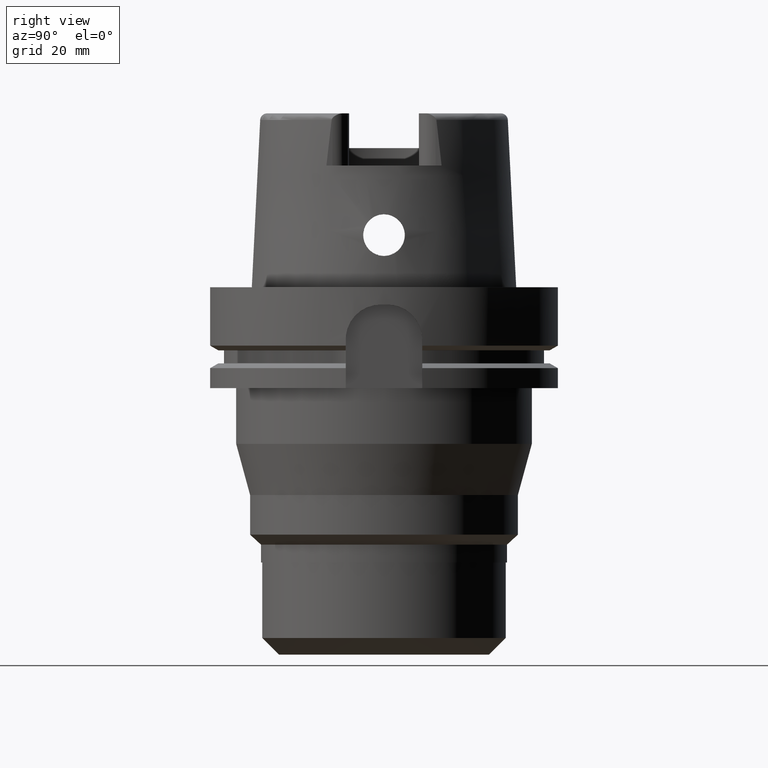
[diagram: clean part render]
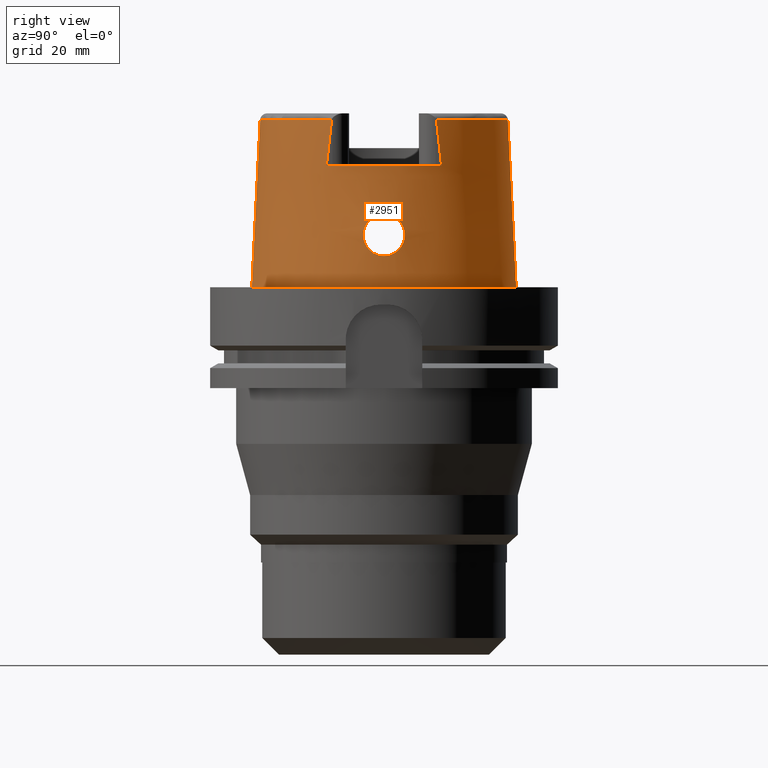
[diagram: same view with one face highlighted and labeled with its STEP entity id]
A machine part, right view. The second image highlights one B-rep face of the part: STEP entity #2951.
In plain terms, the highlighted conical surface has half-angle 2.862 deg.
Its self-contained STEP definition (entity closure, byte-faithful):
#284=CARTESIAN_POINT('',(3.224998031256E1,-1.506460497396E1,4.809929630025E1));
#289=CARTESIAN_POINT('',(0.E0,1.812477262738E-14,4.809987853799E1));
#290=DIRECTION('',(0.E0,0.E0,-1.E0));
#291=DIRECTION('',(9.060259215417E-1,-4.232221987260E-1,0.E0));
#292=AXIS2_PLACEMENT_3D('',#289,#290,#291);
#323=DIRECTION('',(0.E0,-4.993926899645E-2,-9.987522562738E-1));
#324=VECTOR('',#323,4.815996983821E1);
#325=CARTESIAN_POINT('',(0.E0,-3.559494289391E1,4.809987853799E1));
#326=LINE('',#325,#324);
#370=DIRECTION('',(0.E0,4.993926899645E-2,-9.987522562738E-1));
#371=VECTOR('',#370,4.815996983821E1);
#372=CARTESIAN_POINT('',(0.E0,3.559494289391E1,4.809987853799E1));
#373=LINE('',#372,#371);
#377=CARTESIAN_POINT('',(3.694998175923E1,-1.453351852992E-13,2.1E1));
#378=CARTESIAN_POINT('',(3.694998175923E1,-4.799122326449E-1,2.1E1));
#379=CARTESIAN_POINT('',(3.693670376469E1,-1.442540532748E0,2.088414239724E1));
#380=CARTESIAN_POINT('',(3.688227354356E1,-2.811301586E0,2.036808932160E1));
#381=CARTESIAN_POINT('',(3.680970943346E1,-4.022240410232E0,1.953043063064E1));
#382=CARTESIAN_POINT('',(3.674470283531E1,-4.978268947612E0,1.845115512417E1));
#383=CARTESIAN_POINT('',(3.670933065349E1,-5.659110974827E0,1.716299463694E1));
#384=CARTESIAN_POINT('',(3.672363970089E1,-6.010410920734E0,1.575575631164E1));
#385=CARTESIAN_POINT('',(3.679580916816E1,-6.017619566356E0,1.430817000853E1));
#386=CARTESIAN_POINT('',(3.692112760086E1,-5.683788567187E0,1.290208373589E1));
#387=CARTESIAN_POINT('',(3.708594471835E1,-5.012432075060E0,1.159706762272E1));
#388=CARTESIAN_POINT('',(3.726041301215E1,-4.057107370589E0,1.049780005074E1));
#389=CARTESIAN_POINT('',(3.742024448988E1,-2.819590723007E0,9.633109430401E0));
#390=CARTESIAN_POINT('',(3.752612894498E1,-1.431363051833E0,9.112686081133E0));
#391=CARTESIAN_POINT('',(3.755000165825E1,-4.735011799021E-1,9.E0));
#392=CARTESIAN_POINT('',(3.755000165825E1,0.E0,9.E0));
#397=CARTESIAN_POINT('',(3.755000165825E1,0.E0,9.E0));
#398=CARTESIAN_POINT('',(3.755000165825E1,4.745582118721E-1,9.E0));
#399=CARTESIAN_POINT('',(3.752592864515E1,1.428696235059E0,9.113705769023E0));
#400=CARTESIAN_POINT('',(3.742286685785E1,2.788945392627E0,9.620187855067E0));
#401=CARTESIAN_POINT('',(3.726759274023E1,4.008571483131E0,1.045760523560E1));
#402=CARTESIAN_POINT('',(3.709603930462E1,4.964135615998E0,1.152789653610E1));
#403=CARTESIAN_POINT('',(3.692857004614E1,5.659263583319E0,1.283199478425E1));
#404=CARTESIAN_POINT('',(3.679907978880E1,6.013372692720E0,1.425765163703E1));
#405=CARTESIAN_POINT('',(3.672461023135E1,6.015279040013E0,1.572065441627E1));
#406=CARTESIAN_POINT('',(3.670907477178E1,5.671372285874E0,1.712979058700E1));
#407=CARTESIAN_POINT('',(3.674329838802E1,4.999709600727E0,1.842027000928E1));
#408=CARTESIAN_POINT('',(3.680812510263E1,4.046103400386E0,1.951007120824E1));
#409=CARTESIAN_POINT('',(3.688133828058E1,2.830804808809E0,2.035890139054E1));
#410=CARTESIAN_POINT('',(3.693654872426E1,1.451647881809E0,2.088284739979E1));
#411=CARTESIAN_POINT('',(3.694998175923E1,4.828042574775E-1,2.1E1));
#412=CARTESIAN_POINT('',(3.694998175923E1,-1.453351852992E-13,2.1E1));
#447=CARTESIAN_POINT('',(0.E0,1.519173610602E-14,3.5E1));
#448=DIRECTION('',(0.E0,0.E0,-1.E0));
#449=DIRECTION('',(8.896561898443E-1,4.566309931135E-1,0.E0));
#450=AXIS2_PLACEMENT_3D('',#447,#448,#449);
#519=CARTESIAN_POINT('',(3.224999527510E1,-1.655287543507E1,3.5E1));
#520=CARTESIAN_POINT('',(3.224999527510E1,-1.639341859026E1,3.645621288231E1));
#521=CARTESIAN_POINT('',(3.224999957996E1,-1.607118640311E1,3.936829811877E1));
#522=CARTESIAN_POINT('',(3.225000855749E1,-1.557477302377E1,4.373473880414E1));
#523=CARTESIAN_POINT('',(3.224998031256E1,-1.523637801989E1,4.664538119581E1));
#524=CARTESIAN_POINT('',(3.224998031256E1,-1.506460497396E1,4.809929630025E1));
#2088=CARTESIAN_POINT('',(0.E0,1.519173610602E-14,7.958078640513E-13));
#2089=DIRECTION('',(0.E0,0.E0,1.E0));
#2090=DIRECTION('',(0.E0,-1.E0,0.E0));
#2091=AXIS2_PLACEMENT_3D('',#2088,#2089,#2090);
#2300=CARTESIAN_POINT('',(0.E0,1.812477262738E-14,4.809987853799E1));
#2301=DIRECTION('',(0.E0,0.E0,-1.E0));
#2302=DIRECTION('',(0.E0,1.E0,0.E0));
#2303=AXIS2_PLACEMENT_3D('',#2300,#2301,#2302);
#2308=CARTESIAN_POINT('',(0.E0,1.812477262738E-14,4.809987853799E1));
#2309=DIRECTION('',(0.E0,0.E0,-1.E0));
#2310=DIRECTION('',(5.943840407716E-4,9.999998233538E-1,0.E0));
#2311=AXIS2_PLACEMENT_3D('',#2308,#2309,#2310);
#2352=CARTESIAN_POINT('',(3.225000552017E1,1.506439888238E1,4.810003662091E1));
#2353=CARTESIAN_POINT('',(3.225000552017E1,1.523630632002E1,4.664499963998E1));
#2354=CARTESIAN_POINT('',(3.225000026293E1,1.557504653077E1,4.373494474853E1));
#2355=CARTESIAN_POINT('',(3.224999079949E1,1.607149002101E1,3.936828126073E1));
#2356=CARTESIAN_POINT('',(3.225002129258E1,1.639330335239E1,3.645620266028E1));
#2357=CARTESIAN_POINT('',(3.225002129258E1,1.655276054280E1,3.5E1));
#2418=CARTESIAN_POINT('',(0.E0,3.559494289391E1,4.809987853799E1));
#2419=VERTEX_POINT('',#2418);
#2420=CARTESIAN_POINT('',(2.115706598832E-2,3.559493660620E1,4.809987853799E1));
#2421=CARTESIAN_POINT('',(3.225001656051E1,1.506440810212E1,4.809987853799E1));
#2422=VERTEX_POINT('',#2420);
#2423=VERTEX_POINT('',#2421);
#2427=VERTEX_POINT('',#284);
#2428=CARTESIAN_POINT('',(0.E0,-3.559494289391E1,4.809987853799E1));
#2429=VERTEX_POINT('',#2428);
#2432=CARTESIAN_POINT('',(0.E0,-3.800001658252E1,1.563194018672E-13));
#2433=VERTEX_POINT('',#2432);
#2434=CARTESIAN_POINT('',(0.E0,3.800001658252E1,7.958078640513E-13));
#2435=VERTEX_POINT('',#2434);
#2438=CARTESIAN_POINT('',(3.225E1,1.655285457013E1,3.5E1));
#2439=CARTESIAN_POINT('',(3.225E1,-1.655285457013E1,3.5E1));
#2440=VERTEX_POINT('',#2438);
#2441=VERTEX_POINT('',#2439);
#2442=VERTEX_POINT('',#377);
#2443=VERTEX_POINT('',#392);
#2923=CARTESIAN_POINT('',(0.E0,1.519173610602E-14,2.404993926900E1));
#2924=DIRECTION('',(0.E0,0.E0,-1.E0));
#2925=DIRECTION('',(0.E0,-1.E0,0.E0));
#2926=AXIS2_PLACEMENT_3D('',#2923,#2924,#2925);
#2927=CONICAL_SURFACE('',#2926,3.679747973821E1,2.8625E0);
#2929=ORIENTED_EDGE('',*,*,#2928,.F.);
#2931=ORIENTED_EDGE('',*,*,#2930,.F.);
#2933=ORIENTED_EDGE('',*,*,#2932,.F.);
#2935=ORIENTED_EDGE('',*,*,#2934,.F.);
#2936=ORIENTED_EDGE('',*,*,#2908,.T.);
#2938=ORIENTED_EDGE('',*,*,#2937,.F.);
#2939=ORIENTED_EDGE('',*,*,#2904,.F.);
#2940=ORIENTED_EDGE('',*,*,#2873,.F.);
#2942=ORIENTED_EDGE('',*,*,#2941,.F.);
#2943=EDGE_LOOP('',(#2929,#2931,#2933,#2935,#2936,#2938,#2939,#2940,#2942));
#2944=FACE_OUTER_BOUND('',#2943,.F.);
#2946=ORIENTED_EDGE('',*,*,#2945,.T.);
#2948=ORIENTED_EDGE('',*,*,#2947,.T.);
#2949=EDGE_LOOP('',(#2946,#2948));
#2950=FACE_BOUND('',#2949,.F.);
#293=CIRCLE('',#292,3.559494289391E1);
#393=B_SPLINE_CURVE_WITH_KNOTS('',3,(#377,#378,#379,#380,#381,#382,#383,#384,
#385,#386,#387,#388,#389,#390,#391,#392),.UNSPECIFIED.,.F.,.F.,(4,1,1,1,1,1,1,1,
1,1,1,1,1,4),(0.E0,7.692307692308E-2,1.538461538462E-1,2.307692307692E-1,
3.076923076923E-1,3.846153846154E-1,4.615384615385E-1,5.384615384615E-1,
6.153846153846E-1,6.923076923077E-1,7.692307692308E-1,8.461538461538E-1,
9.230769230769E-1,1.E0),.UNSPECIFIED.);
#413=B_SPLINE_CURVE_WITH_KNOTS('',3,(#397,#398,#399,#400,#401,#402,#403,#404,
#405,#406,#407,#408,#409,#410,#411,#412),.UNSPECIFIED.,.F.,.F.,(4,1,1,1,1,1,1,1,
1,1,1,1,1,4),(0.E0,7.692307692308E-2,1.538461538462E-1,2.307692307692E-1,
3.076923076923E-1,3.846153846154E-1,4.615384615385E-1,5.384615384615E-1,
6.153846153846E-1,6.923076923077E-1,7.692307692308E-1,8.461538461538E-1,
9.230769230769E-1,1.E0),.UNSPECIFIED.);
#451=CIRCLE('',#450,3.624995854370E1);
#525=B_SPLINE_CURVE_WITH_KNOTS('',3,(#519,#520,#521,#522,#523,#524),
.UNSPECIFIED.,.F.,.F.,(4,1,1,4),(0.E0,3.333333333333E-1,6.666666666667E-1,1.E0),
.UNSPECIFIED.);
#2092=CIRCLE('',#2091,3.800001658252E1);
#2304=CIRCLE('',#2303,3.559494289391E1);
#2312=CIRCLE('',#2311,3.559494289391E1);
#2358=B_SPLINE_CURVE_WITH_KNOTS('',3,(#2352,#2353,#2354,#2355,#2356,#2357),
.UNSPECIFIED.,.F.,.F.,(4,1,1,4),(0.E0,3.333333333333E-1,6.666666666667E-1,1.E0),
.UNSPECIFIED.);
#2873=EDGE_CURVE('',#2427,#2429,#293,.T.);
#2904=EDGE_CURVE('',#2429,#2433,#326,.T.);
#2908=EDGE_CURVE('',#2419,#2435,#373,.T.);
#2928=EDGE_CURVE('',#2440,#2441,#451,.T.);
#2930=EDGE_CURVE('',#2423,#2440,#2358,.T.);
#2932=EDGE_CURVE('',#2422,#2423,#2312,.T.);
#2934=EDGE_CURVE('',#2419,#2422,#2304,.T.);
#2937=EDGE_CURVE('',#2433,#2435,#2092,.T.);
#2941=EDGE_CURVE('',#2441,#2427,#525,.T.);
#2945=EDGE_CURVE('',#2442,#2443,#393,.T.);
#2947=EDGE_CURVE('',#2443,#2442,#413,.T.);
#2951=ADVANCED_FACE('',(#2944,#2950),#2927,.T.);